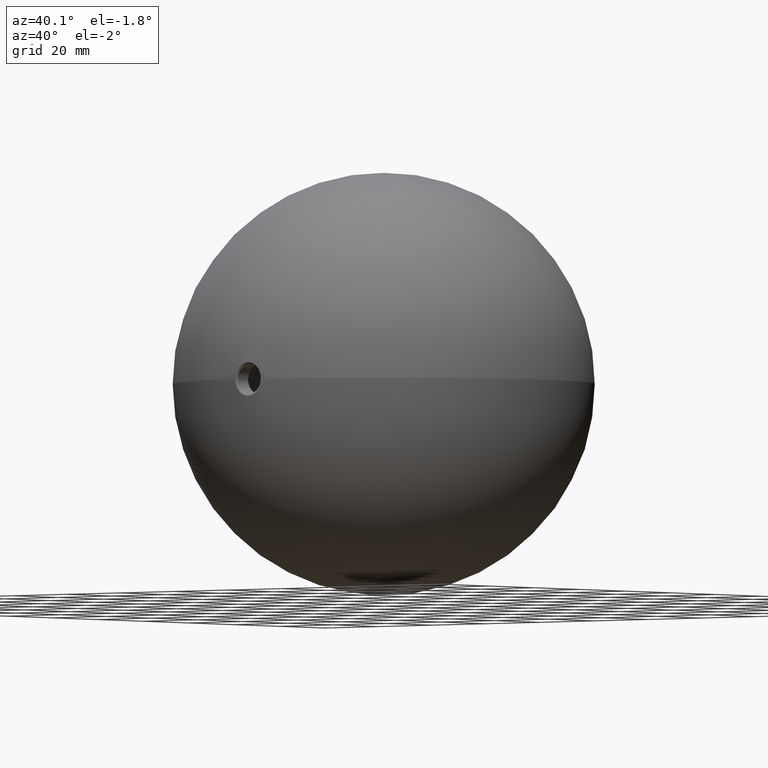
[diagram: clean part render]
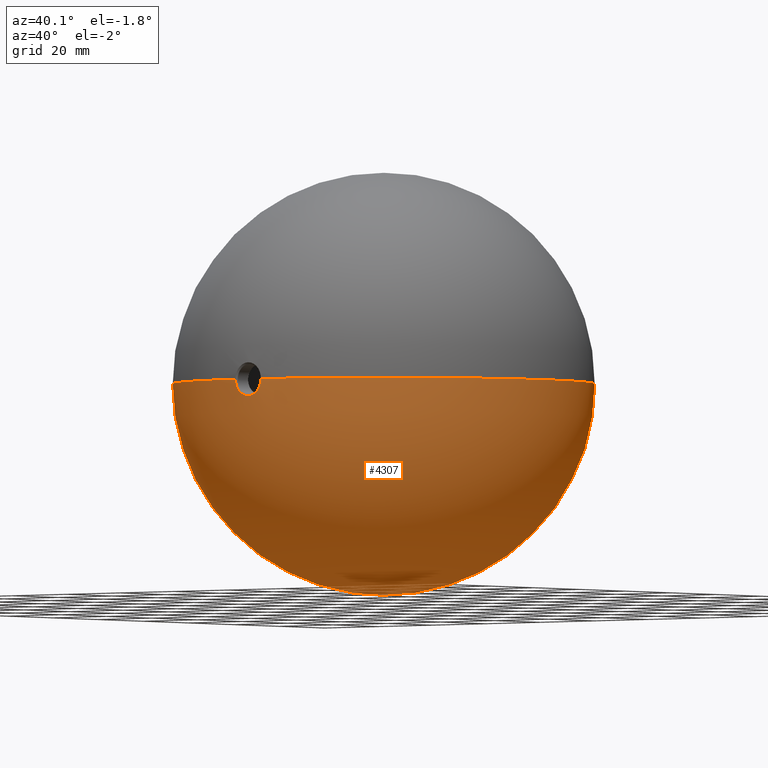
[diagram: same view with one face highlighted and labeled with its STEP entity id]
A machine part, auxiliary view. The second image highlights one B-rep face of the part: STEP entity #4307.
In plain terms, the highlighted spherical surface has radius 60 mm.
Its self-contained STEP definition (entity closure, byte-faithful):
#247 = DIRECTION ( 'NONE',  ( 0.0000000000000000000, 0.0000000000000000000, 1.000000000000000000 ) ) ;
#293 = CIRCLE ( 'NONE', #8629, 4.746536731185482700 ) ;
#493 = ORIENTED_EDGE ( 'NONE', *, *, #10179, .T. ) ;
#728 = ORIENTED_EDGE ( 'NONE', *, *, #1335, .F. ) ;
#893 = EDGE_CURVE ( 'NONE', #9109, #8073, #8081, .T. ) ;
#900 = DIRECTION ( 'NONE',  ( -0.0000000000000000000, -0.0000000000000000000, -1.000000000000000000 ) ) ;
#977 = CARTESIAN_POINT ( 'NONE',  ( 0.0000000000000000000, 0.0000000000000000000, 0.0000000000000000000 ) ) ;
#1335 = EDGE_CURVE ( 'NONE', #6648, #8073, #7270, .T. ) ;
#1375 = CARTESIAN_POINT ( 'NONE',  ( -3.673940397442059200E-015, 60.00000000000000000, 0.0000000000000000000 ) ) ;
#1663 = CARTESIAN_POINT ( 'NONE',  ( -4.746536731185480900, -59.81195857902921600, 0.0000000000000000000 ) ) ;
#1760 = DIRECTION ( 'NONE',  ( 1.000000000000000000, 0.0000000000000000000, 0.0000000000000000000 ) ) ;
#2067 = ORIENTED_EDGE ( 'NONE', *, *, #893, .T. ) ;
#2706 = DIRECTION ( 'NONE',  ( -0.0000000000000000000, 0.0000000000000000000, 1.000000000000000000 ) ) ;
#3005 = CARTESIAN_POINT ( 'NONE',  ( 0.0000000000000000000, 0.0000000000000000000, 0.0000000000000000000 ) ) ;
#3459 = AXIS2_PLACEMENT_3D ( 'NONE', #977, #900, #7356 ) ;
#3530 = DIRECTION ( 'NONE',  ( -1.224646799147353200E-016, 0.0000000000000000000, -1.000000000000000000 ) ) ;
#3689 = DIRECTION ( 'NONE',  ( 0.0000000000000000000, 0.0000000000000000000, 1.000000000000000000 ) ) ;
#4307 = ADVANCED_FACE ( 'NONE', ( #8785 ), #8913, .T. ) ;
#5026 = CARTESIAN_POINT ( 'NONE',  ( 0.0000000000000000000, -59.81195857902921600, -4.746536731185482700 ) ) ;
#5105 = AXIS2_PLACEMENT_3D ( 'NONE', #10570, #10632, #3689 ) ;
#5731 = DIRECTION ( 'NONE',  ( -0.0000000000000000000, 1.000000000000000000, -0.0000000000000000000 ) ) ;
#5829 = CIRCLE ( 'NONE', #7928, 60.00000000000000000 ) ;
#6648 = VERTEX_POINT ( 'NONE', #1375 ) ;
#7270 = CIRCLE ( 'NONE', #7447, 60.00000000000000000 ) ;
#7356 = DIRECTION ( 'NONE',  ( -1.000000000000000000, 0.0000000000000000000, 0.0000000000000000000 ) ) ;
#7447 = AXIS2_PLACEMENT_3D ( 'NONE', #3005, #2706, #1760 ) ;
#7928 = AXIS2_PLACEMENT_3D ( 'NONE', #8874, #3530, #9758 ) ;
#8073 = VERTEX_POINT ( 'NONE', #1663 ) ;
#8081 = CIRCLE ( 'NONE', #5105, 4.746536731185482700 ) ;
#8629 = AXIS2_PLACEMENT_3D ( 'NONE', #11009, #5731, #247 ) ;
#8785 = FACE_OUTER_BOUND ( 'NONE', #10947, .T. ) ;
#8874 = CARTESIAN_POINT ( 'NONE',  ( 0.0000000000000000000, 0.0000000000000000000, 0.0000000000000000000 ) ) ;
#8913 = SPHERICAL_SURFACE ( 'NONE', #3459, 60.00000000000000000 ) ;
#9109 = VERTEX_POINT ( 'NONE', #5026 ) ;
#9505 = CARTESIAN_POINT ( 'NONE',  ( 4.746536731185480900, -59.81195857902921600, -5.812831014881639000E-016 ) ) ;
#9758 = DIRECTION ( 'NONE',  ( -1.000000000000000000, 0.0000000000000000000, 1.224646799147353000E-016 ) ) ;
#9829 = EDGE_CURVE ( 'NONE', #10901, #9109, #293, .T. ) ;
#10179 = EDGE_CURVE ( 'NONE', #6648, #10901, #5829, .T. ) ;
#10570 = CARTESIAN_POINT ( 'NONE',  ( 0.0000000000000000000, -59.81195857902921600, 0.0000000000000000000 ) ) ;
#10632 = DIRECTION ( 'NONE',  ( -0.0000000000000000000, 1.000000000000000000, -0.0000000000000000000 ) ) ;
#10901 = VERTEX_POINT ( 'NONE', #9505 ) ;
#10947 = EDGE_LOOP ( 'NONE', ( #728, #493, #11033, #2067 ) ) ;
#11009 = CARTESIAN_POINT ( 'NONE',  ( 0.0000000000000000000, -59.81195857902921600, 0.0000000000000000000 ) ) ;
#11033 = ORIENTED_EDGE ( 'NONE', *, *, #9829, .T. ) ;